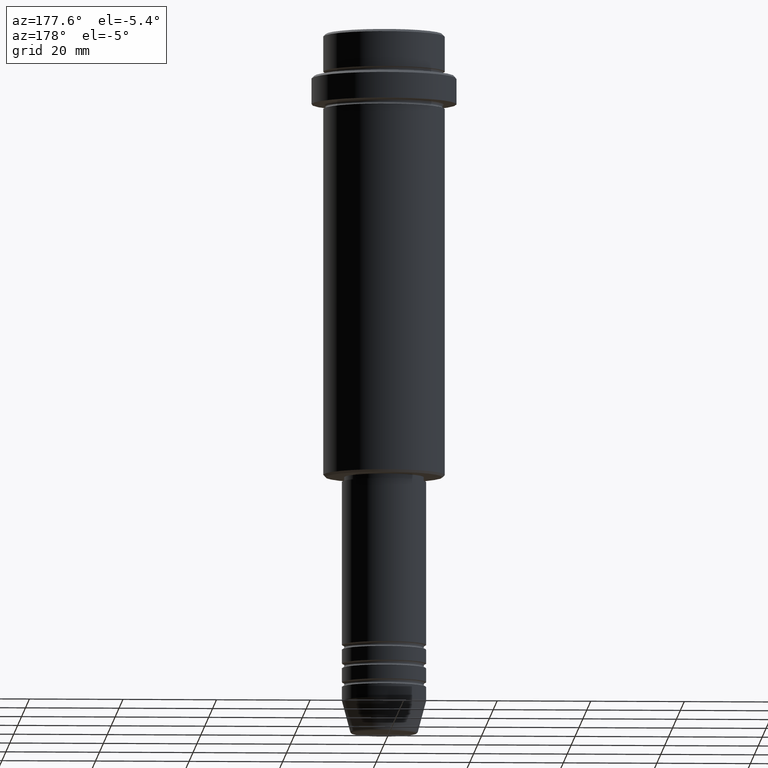
[diagram: clean part render]
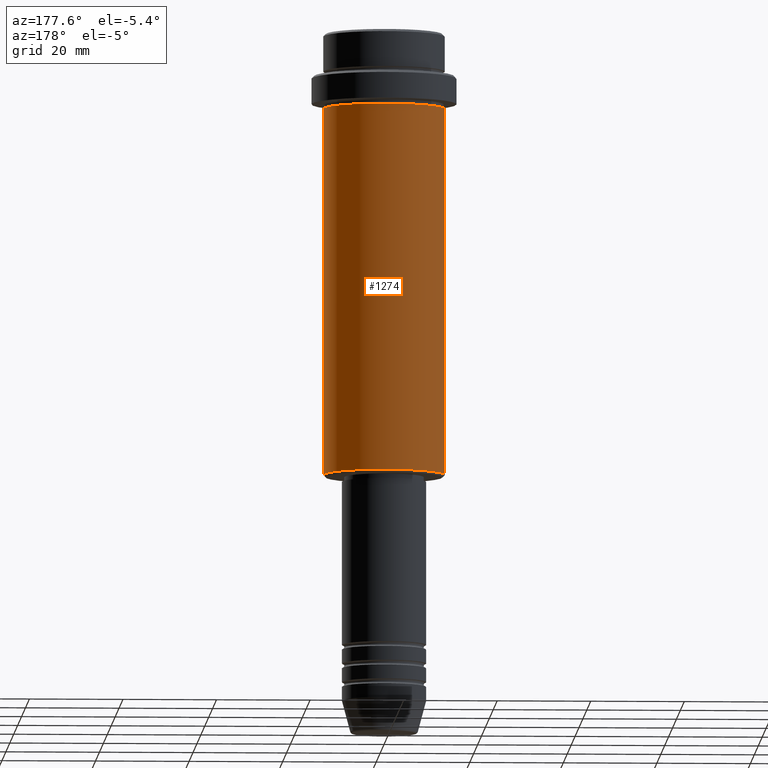
[diagram: same view with one face highlighted and labeled with its STEP entity id]
A machine part, auxiliary view. The second image highlights one B-rep face of the part: STEP entity #1274.
In plain terms, the highlighted cylindrical surface (partial cylindrical patch) has radius 13 mm, axis along (-0, -0, 1).
Its self-contained STEP definition (entity closure, byte-faithful):
#31 = EDGE_CURVE ( 'NONE', #1306, #1002, #659, .T. ) ;
#60 = VECTOR ( 'NONE', #1164, 1000.000000000000000 ) ;
#66 = CARTESIAN_POINT ( 'NONE',  ( 0.000000000000000000, 0.000000000000000000, 0.000000000000000000 ) ) ;
#96 = DIRECTION ( 'NONE',  ( 1.000000000000000000, 0.000000000000000000, 0.000000000000000000 ) ) ;
#185 = FACE_OUTER_BOUND ( 'NONE', #341, .T. ) ;
#275 = CARTESIAN_POINT ( 'NONE',  ( -13.00000000000000000, 1.592040838891559095E-15, 0.000000000000000000 ) ) ;
#341 = EDGE_LOOP ( 'NONE', ( #928, #655, #358, #593 ) ) ;
#358 = ORIENTED_EDGE ( 'NONE', *, *, #825, .F. ) ;
#446 = VERTEX_POINT ( 'NONE', #1188 ) ;
#483 = VERTEX_POINT ( 'NONE', #868 ) ;
#489 = DIRECTION ( 'NONE',  ( -1.000000000000000000, 0.000000000000000000, 0.000000000000000000 ) ) ;
#501 = CARTESIAN_POINT ( 'NONE',  ( 13.00000000000000000, 0.000000000000000000, 0.000000000000000000 ) ) ;
#512 = AXIS2_PLACEMENT_3D ( 'NONE', #66, #904, #703 ) ;
#533 = DIRECTION ( 'NONE',  ( -0.000000000000000000, -0.000000000000000000, 1.000000000000000000 ) ) ;
#593 = ORIENTED_EDGE ( 'NONE', *, *, #1115, .F. ) ;
#611 = LINE ( 'NONE', #275, #60 ) ;
#631 = CARTESIAN_POINT ( 'NONE',  ( 0.000000000000000000, 0.000000000000000000, -16.00000000000000000 ) ) ;
#646 = VECTOR ( 'NONE', #1417, 1000.000000000000000 ) ;
#655 = ORIENTED_EDGE ( 'NONE', *, *, #1003, .T. ) ;
#659 = CIRCLE ( 'NONE', #1031, 13.00000000000000000 ) ;
#703 = DIRECTION ( 'NONE',  ( 1.000000000000000000, 0.000000000000000000, 0.000000000000000000 ) ) ;
#825 = EDGE_CURVE ( 'NONE', #483, #446, #1333, .T. ) ;
#868 = CARTESIAN_POINT ( 'NONE',  ( 13.00000000000000000, 0.000000000000000000, -16.00000000000000000 ) ) ;
#904 = DIRECTION ( 'NONE',  ( -0.000000000000000000, -0.000000000000000000, 1.000000000000000000 ) ) ;
#928 = ORIENTED_EDGE ( 'NONE', *, *, #31, .T. ) ;
#1002 = VERTEX_POINT ( 'NONE', #1057 ) ;
#1003 = EDGE_CURVE ( 'NONE', #1002, #446, #611, .T. ) ;
#1031 = AXIS2_PLACEMENT_3D ( 'NONE', #1249, #1154, #489 ) ;
#1052 = LINE ( 'NONE', #501, #646 ) ;
#1055 = CYLINDRICAL_SURFACE ( 'NONE', #512, 13.00000000000000000 ) ;
#1057 = CARTESIAN_POINT ( 'NONE',  ( -13.00000000000000000, 1.592040838891559095E-15, -94.50000000000000000 ) ) ;
#1115 = EDGE_CURVE ( 'NONE', #1306, #483, #1052, .T. ) ;
#1154 = DIRECTION ( 'NONE',  ( -0.000000000000000000, -0.000000000000000000, 1.000000000000000000 ) ) ;
#1164 = DIRECTION ( 'NONE',  ( -0.000000000000000000, -0.000000000000000000, 1.000000000000000000 ) ) ;
#1188 = CARTESIAN_POINT ( 'NONE',  ( -13.00000000000000000, 1.592040838891559095E-15, -16.00000000000000000 ) ) ;
#1248 = CARTESIAN_POINT ( 'NONE',  ( 13.00000000000000000, 0.000000000000000000, -94.50000000000000000 ) ) ;
#1249 = CARTESIAN_POINT ( 'NONE',  ( 0.000000000000000000, 0.000000000000000000, -94.50000000000000000 ) ) ;
#1274 = ADVANCED_FACE ( 'NONE', ( #185 ), #1055, .T. ) ;
#1306 = VERTEX_POINT ( 'NONE', #1248 ) ;
#1333 = CIRCLE ( 'NONE', #1360, 13.00000000000000000 ) ;
#1360 = AXIS2_PLACEMENT_3D ( 'NONE', #631, #533, #96 ) ;
#1417 = DIRECTION ( 'NONE',  ( -0.000000000000000000, -0.000000000000000000, 1.000000000000000000 ) ) ;